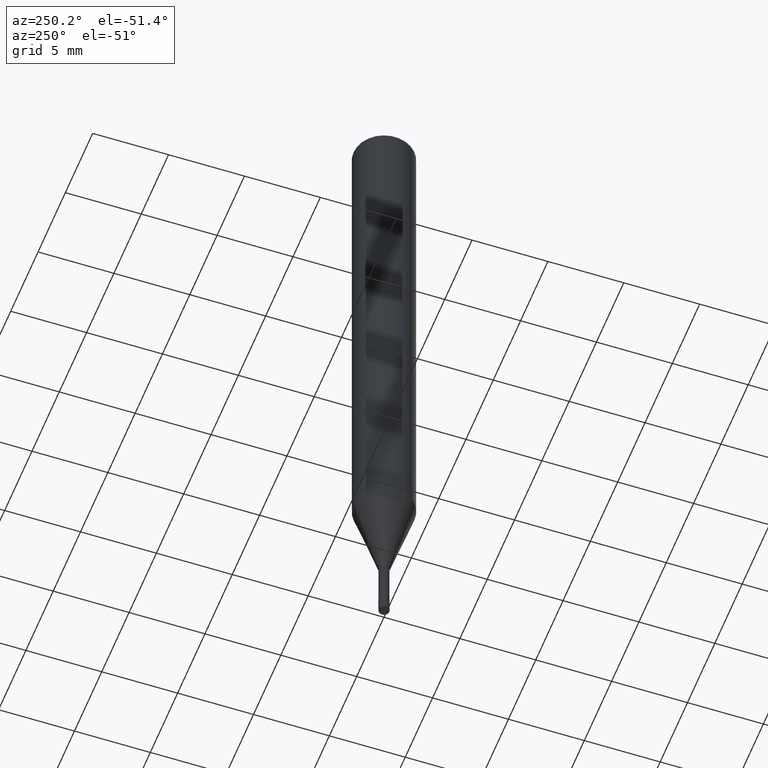
[diagram: clean part render]
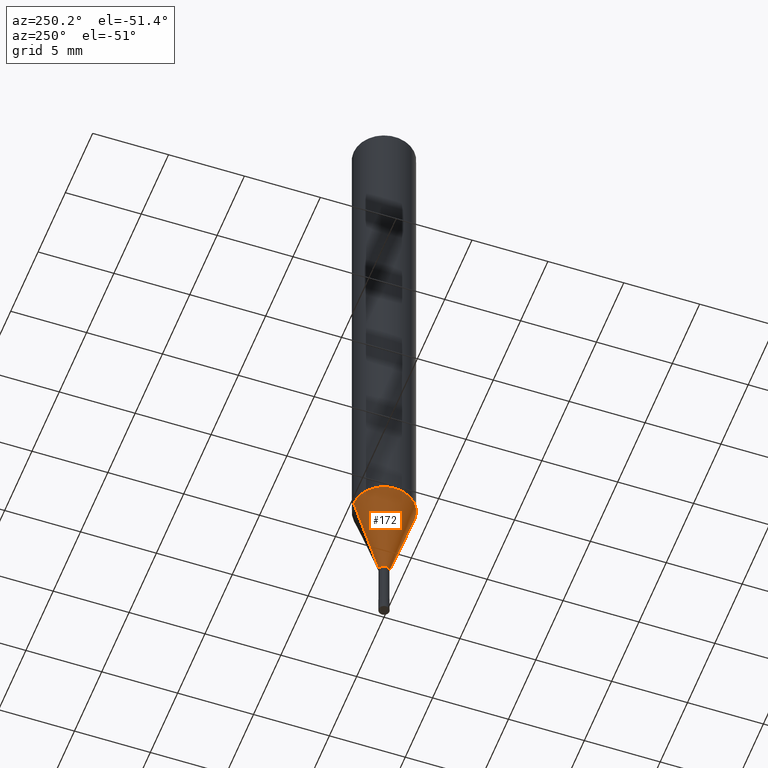
[diagram: same view with one face highlighted and labeled with its STEP entity id]
A machine part, auxiliary view. The second image highlights one B-rep face of the part: STEP entity #172.
In plain terms, the highlighted conical surface has half-angle 16 deg.
Its self-contained STEP definition (entity closure, byte-faithful):
#112=VERTEX_POINT('',#252);
#124=EDGE_CURVE('',#188,#130,#265,.T.);
#130=VERTEX_POINT('',#272);
#134=EDGE_CURVE('',#154,#112,#277,.T.);
#148=EDGE_CURVE('',#130,#112,#292,.T.);
#154=VERTEX_POINT('',#298);
#162=EDGE_CURVE('',#154,#188,#310,.T.);
#172=ADVANCED_FACE('',(#322),#323,.T.);
#188=VERTEX_POINT('',#339);
#252=CARTESIAN_POINT('',(0.0,0.33995,-41.0));
#265=CIRCLE('',#417,1.99995);
#272=CARTESIAN_POINT('',(0.0,1.99995,-35.211));
#277=CIRCLE('',#431,0.33995);
#292=LINE('',#452,#453);
#298=CARTESIAN_POINT('',(4.16304929981917E-017,-0.33995,-41.0));
#310=LINE('',#474,#475);
#322=FACE_OUTER_BOUND('',#490,.T.);
#323=CONICAL_SURFACE('',#491,1.16995,0.279257622355071);
#339=CARTESIAN_POINT('',(2.44915147732706E-016,-1.99995,-35.211));
#417=AXIS2_PLACEMENT_3D('',#587,#588,#589);
#431=AXIS2_PLACEMENT_3D('',#607,#608,#609);
#452=CARTESIAN_POINT('',(-1.43272820365449E-016,1.16995,-38.1055));
#453=VECTOR('',#623,1.0);
#474=CARTESIAN_POINT('',(1.43272820365449E-016,-1.16995,-38.1055));
#475=VECTOR('',#652,1.0);
#490=EDGE_LOOP('',(#674,#675,#676,#677));
#491=AXIS2_PLACEMENT_3D('',#678,#679,#680);
#587=CARTESIAN_POINT('',(0.0,0.0,-35.211));
#588=DIRECTION('',(0.0,0.0,-1.0));
#589=DIRECTION('',(0.0,1.0,0.0));
#607=CARTESIAN_POINT('',(0.0,0.0,-41.0));
#608=DIRECTION('',(0.0,0.0,-1.0));
#609=DIRECTION('',(0.0,1.0,0.0));
#623=DIRECTION('',(3.37553074882733E-017,-0.275642106403519,-0.961260333716851));
#652=DIRECTION('',(3.37553074882733E-017,-0.275642106403519,0.961260333716851));
#674=ORIENTED_EDGE('',*,*,#148,.T.);
#675=ORIENTED_EDGE('',*,*,#134,.F.);
#676=ORIENTED_EDGE('',*,*,#162,.T.);
#677=ORIENTED_EDGE('',*,*,#124,.T.);
#678=CARTESIAN_POINT('',(0.0,0.0,-38.1055));
#679=DIRECTION('',(-0.0,-0.0,1.0));
#680=DIRECTION('',(0.0,1.0,0.0));